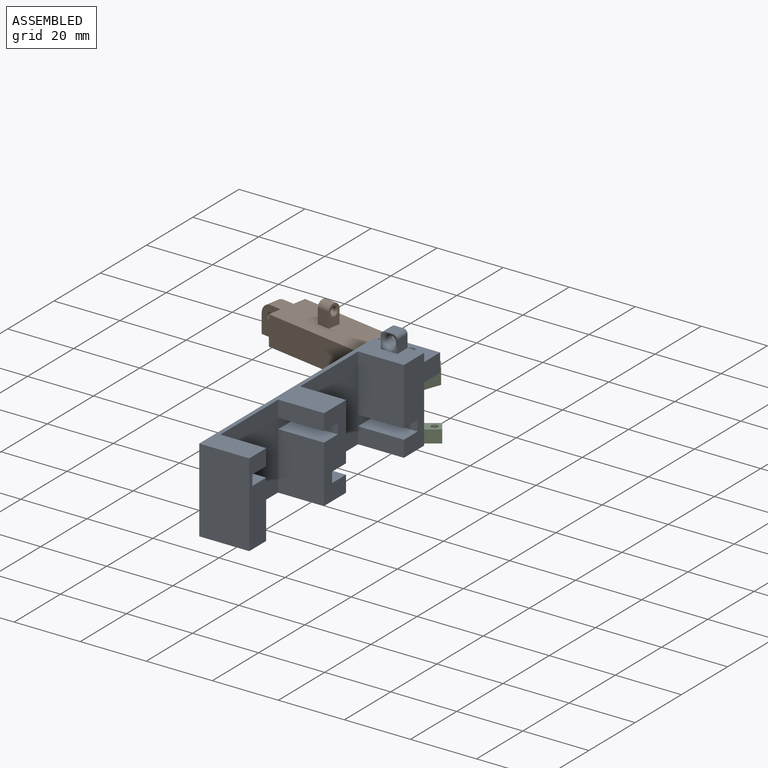
[diagram: assembled view]
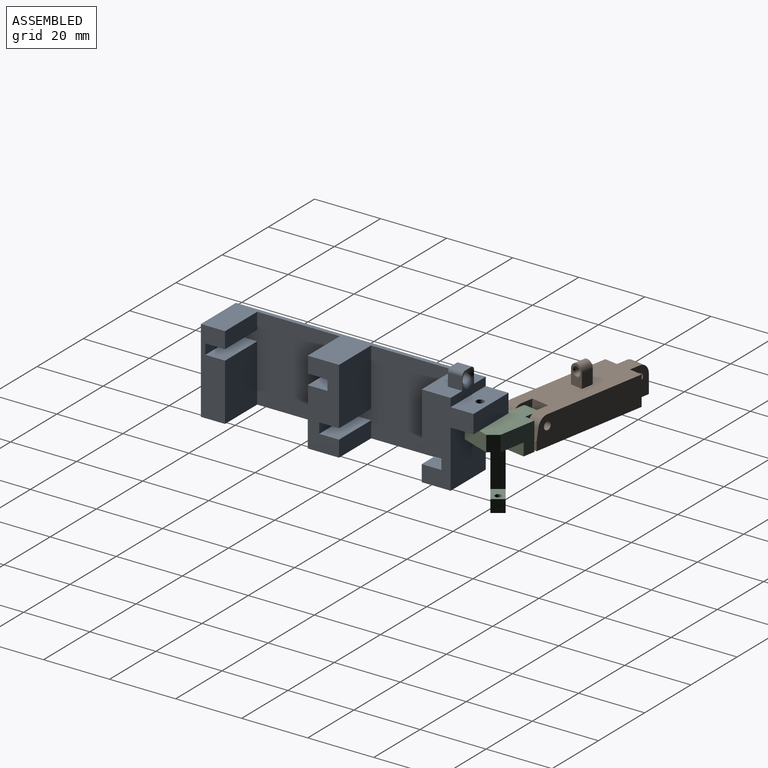
[diagram: assembled view, second angle]
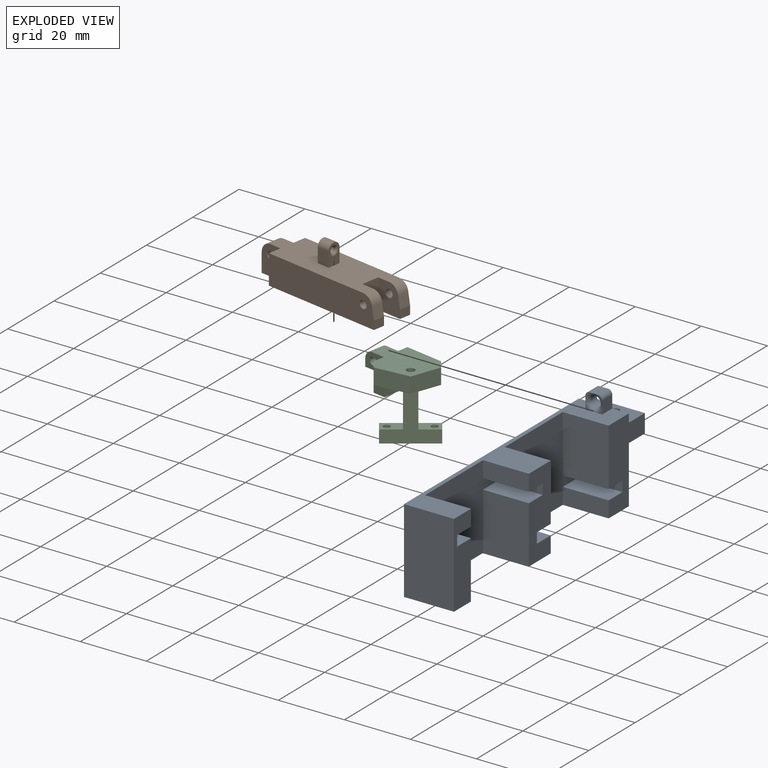
[diagram: exploded view]
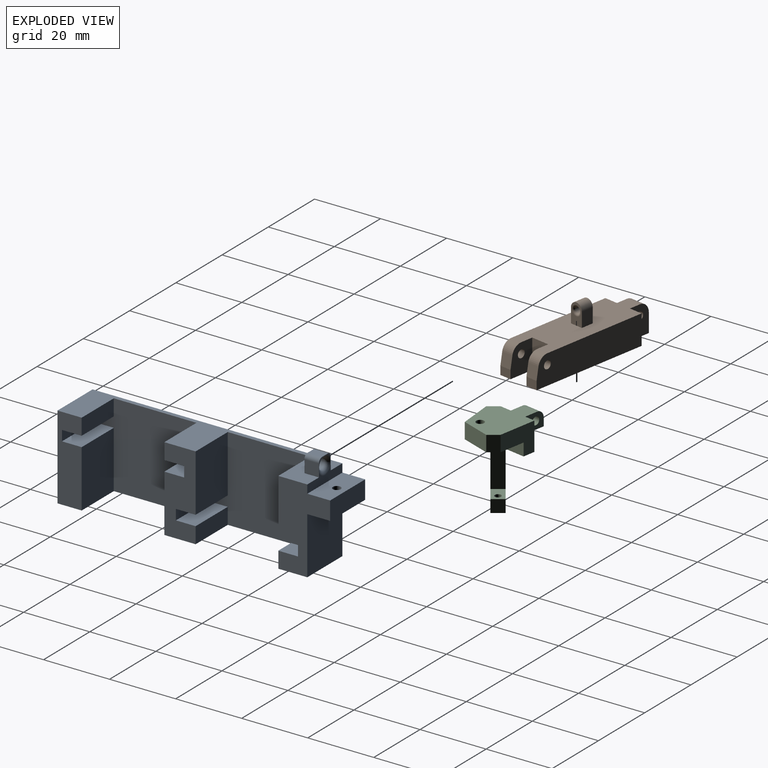
[diagram: exploded view, second angle]
ASSEMBLY  parts=3 mates=2
PART A: 50 faces, bbox 15.2x82.6x32 mm
  f0: plane 1.23x1.23mm, normal (0,-1,0), area 0.6mm2, adj f5,f40,f46
  f1: plane 1.23x1.23mm, normal (0,-1,0), area 0.6mm2, adj f5,f42,f46
  f2: plane 1.23x1.23mm, normal (0,-1,0), area 0.3mm2, adj f46,f48
  f3: plane 15.16x3.77mm, normal (0,1,0), area 39.1mm2, adj f5,f6,f10,f27,f40,f42,f49
  f4: plane 1.23x1.23mm, normal (0,1,0), area 0.3mm2, adj f48,f49
  f5: plane 75.68x15.2mm, normal (0,0,1), area 428.8mm2, adj f0,f1,f3,f6,f7,f10,f11,f12
  f6: plane 25.4x15.69mm, normal (1,0,0), area 242.9mm2, adj f3,f5,f8,f9,f20,f21,f22,f23
  f7: plane 25.4x7.32mm, normal (1,0,0), area 167.1mm2, adj f5,f8,f13,f14,f34,f35,f36,f37
  f8: plane 75.64x15.16mm, normal (0,0,-1), area 451.1mm2, adj f6,f7,f10,f11,f12,f13,f15,f24
  f9: plane 15.16x5.59mm, normal (0,1,0), area 84.7mm2, adj f6,f10,f26,f27
  f10: plane 82.55x25.4mm, normal (-1,0,0), area 1959.9mm2, adj f3,f5,f8,f9,f13,f25,f26,f27
  f11: plane 36.98x25.4mm, normal (1,0,0), area 673.4mm2, adj f5,f8,f14,f29,f30,f31,f32,f33
  f12: plane 36.98x25.4mm, normal (1,0,0), area 673.4mm2, adj f5,f8,f15,f16,f17,f18,f19,f20
  f13: plane 25.4x15.16mm, normal (0,-1,0), area 385.1mm2, adj f5,f7,f8,f10
  f14: plane 13.89x4.94mm, normal (0,1,0), area 68.5mm2, adj f5,f7,f11,f37
  f15: plane 13.89x4.94mm, normal (0,1,0), area 68.5mm2, adj f8,f12,f16,f38
  f16: plane 13.89x5.97mm, normal (0,0,1), area 82.9mm2, adj f12,f15,f17,f38
  f17: plane 13.89x3.14mm, normal (0,1,0), area 43.5mm2, adj f12,f16,f18,f38
  f18: plane 13.89x5.97mm, normal (0,0,-1), area 82.9mm2, adj f12,f17,f19,f38
  f19: plane 17.33x13.89mm, normal (0,1,0), area 240.7mm2, adj f5,f12,f18,f38
  f20: plane 17.33x13.89mm, normal (0,-1,0), area 240.7mm2, adj f5,f6,f12,f21
  f21: plane 13.89x5.97mm, normal (0,0,-1), area 82.9mm2, adj f6,f12,f20,f22
  f22: plane 13.89x3.14mm, normal (0,-1,0), area 43.5mm2, adj f6,f12,f21,f23
  f23: plane 13.89x5.97mm, normal (0,0,1), area 82.9mm2, adj f6,f12,f22,f24
  f24: plane 13.89x4.94mm, normal (0,-1,0), area 68.5mm2, adj f6,f8,f12,f23
  f25: plane 17.27x15.16mm, normal (0,1,0), area 261.8mm2, adj f6,f8,f10,f26
  f26: plane 15.16x6.91mm, normal (0,0,-1), area 100.3mm2, adj f6,f9,f10,f25,f39
  f27: plane 15.16x6.91mm, normal (0,0,1), area 100.3mm2, adj f3,f6,f9,f10,f39
  f28: plane 1.23x1.23mm, normal (0,1,0), area 0.3mm2, adj f47,f49
  f29: plane 13.89x4.94mm, normal (0,-1,0), area 68.5mm2, adj f5,f11,f30,f38
  f30: plane 13.89x5.97mm, normal (0,0,-1), area 82.9mm2, adj f11,f29,f31,f38
  f31: plane 13.89x3.14mm, normal (0,-1,0), area 43.5mm2, adj f11,f30,f32,f38
  f32: plane 13.89x5.97mm, normal (0,0,1), area 82.9mm2, adj f11,f31,f33,f38
  f33: plane 17.33x13.89mm, normal (0,-1,0), area 240.7mm2, adj f8,f11,f32,f38
  f34: plane 17.33x13.89mm, normal (0,1,0), area 240.7mm2, adj f7,f8,f11,f35
  f35: plane 13.89x5.97mm, normal (0,0,1), area 82.9mm2, adj f7,f11,f34,f36
  f36: plane 13.89x3.14mm, normal (0,1,0), area 43.5mm2, adj f7,f11,f35,f37
  f37: plane 13.89x5.97mm, normal (0,0,-1), area 82.9mm2, adj f7,f11,f14,f36
  f38: plane 25.4x9.47mm, normal (1,0,0), area 203mm2, adj f5,f8,f15,f16,f17,f18,f19,f29
  f39: cylinder r=1.19mm len=5.59mm, axis (0,0,-1), area 41.9mm2, adj f26,f27
  f40: plane 4.39x3.81mm, normal (-1,0,0), area 16.6mm2, adj f0,f3,f5,f46,f48,f49
  f41: plane 1.23x1.23mm, normal (0,-1,0), area 0.3mm2, adj f46,f47
  f42: plane 4.39x3.81mm, normal (1,0,0), area 16.6mm2, adj f1,f3,f5,f46,f47,f49
  f43: plane 4.39x2.54mm, normal (0,0,1), area 11mm2, adj f46,f47,f48,f49
  f44: cylinder r=1.59mm len=3.18mm, axis (0,-1,0), area 18.5mm2, adj f45,f46,f49
  f45: bspline ~3.07x1.42mm, area 3.3mm2, adj f5,f44,f46
  f46: torus R=2.86mm, axis (0,-1,0), area 20.1mm2, adj f0,f1,f2,f40,f41,f42,f43,f44
  f47: cylinder r=1.27mm len=4.39mm, axis (0,-1,0), area 8.8mm2, adj f28,f41,f42,f43,f46,f49
  f48: cylinder r=1.27mm len=4.39mm, axis (0,1,0), area 8.8mm2, adj f2,f4,f40,f43,f46,f49
  f49: torus R=2.86mm, axis (0,-1,0), area 24mm2, adj f3,f4,f28,f40,f42,f43,f44,f47
PART B: 32 faces, bbox 12.7x43.4x15.2 mm
  f0: plane 43.43x5.08mm, normal (0,0,1), area 182.2mm2, adj f3,f5,f12,f14,f16,f23,f28,f31
  f1: plane 36.48x12.7mm, normal (0,0,-1), area 399.4mm2, adj f2,f3,f4,f5,f7,f10,f12,f13
  f2: plane 8.89x6.6mm, normal (1,0,0), area 52.1mm2, adj f1,f15,f21,f22,f23,f30
  f3: plane 8.89x6.6mm, normal (-1,0,0), area 52.1mm2, adj f0,f1,f16,f21,f22,f23
  f4: plane 36.83x8.89mm, normal (1,0,0), area 318mm2, adj f1,f9,f10,f11,f15,f29,f30
  f5: plane 36.83x8.89mm, normal (-1,0,0), area 318mm2, adj f0,f1,f6,f7,f8,f16,f28
  f6: plane 3.73x3.56mm, normal (0,-0.98,-0.17), area 13.5mm2, adj f5,f7,f12,f28
  f7: cylinder r=3.17mm len=3.56mm, axis (-1,0,0), area 15.8mm2, adj f1,f5,f6,f12
  f8: cylinder r=1.19mm len=3.56mm, axis (-1,0,0), area 26.7mm2, adj f5,f12
  f9: plane 3.73x3.56mm, normal (0,-0.98,-0.17), area 13.5mm2, adj f4,f10,f13,f29
  f10: cylinder r=3.17mm len=3.56mm, axis (-1,0,0), area 15.8mm2, adj f1,f4,f9,f13
  f11: cylinder r=1.19mm len=3.56mm, axis (-1,0,0), area 26.7mm2, adj f4,f13
  f12: plane 8.89x7.62mm, normal (1,0,0), area 58.3mm2, adj f0,f1,f6,f7,f8,f14,f28
  f13: plane 8.89x7.62mm, normal (-1,0,0), area 58.3mm2, adj f1,f9,f10,f11,f14,f29,f30
  f14: plane 8.89x5.59mm, normal (0,-1,0), area 47.1mm2, adj f0,f1,f12,f13,f30,f31
  f15: plane 8.89x4.06mm, normal (0,1,0), area 36.1mm2, adj f1,f2,f4,f30
  f16: plane 8.89x4.06mm, normal (0,1,0), area 36.1mm2, adj f0,f1,f3,f5
  f17: plane 4.45x3.81mm, normal (1,0,0), area 16.9mm2, adj f1,f18,f20,f25
  f18: plane 6.35x3.81mm, normal (0,-1,0), area 14.7mm2, adj f1,f17,f19,f25,f26
  f19: plane 4.45x3.81mm, normal (-1,0,0), area 16.9mm2, adj f1,f18,f20,f25
  f20: plane 6.35x3.81mm, normal (0,1,0), area 14.7mm2, adj f1,f17,f19,f25,f27
  f21: cylinder r=1.19mm len=4.57mm, axis (1,0,0), area 34.3mm2, adj f2,f3
  f22: cylinder r=3.17mm len=4.57mm, axis (1,0,0), area 22.8mm2, adj f1,f2,f3,f23
  f23: plane 5.72x4.57mm, normal (0,1,0), area 23.6mm2, adj f0,f2,f3,f22,f30,f31
  f24: cylinder r=0.95mm len=2.54mm, axis (0,1,0), area 15.2mm2, adj f26,f27
  f25: cylinder r=1.91mm len=3.81mm, axis (0,1,0), area 22.8mm2, adj f17,f18,f19,f20
  f26: torus R=1.59mm, axis (0,1,0), area 7.4mm2, adj f18,f24
  f27: torus R=1.59mm, axis (0,1,0), area 7.4mm2, adj f20,f24
  f28: plane 3.56x2.54mm, normal (0,-1,0), area 9mm2, adj f0,f5,f6,f12
  f29: plane 3.56x2.54mm, normal (0,-1,0), area 9mm2, adj f4,f9,f13,f30
  f30: plane 43.43x5.08mm, normal (0,0,1), area 182.2mm2, adj f2,f4,f13,f14,f15,f23,f29,f31
  f31: cylinder r=1.27mm len=35.81mm, axis (0,1,0), area 142.9mm2, adj f0,f14,f23,f30
PART C: 29 faces, bbox 19.1x19.6x21.3 mm
  f0: plane 16.76x14.58mm, normal (0,0,-1), area 110.7mm2, adj f1,f2,f3,f4,f5,f14,f15,f16
  f1: plane 4.76x3.59mm, normal (-1,0,0), area 17.1mm2, adj f0,f2,f9,f10
  f2: plane 9.19x5.3mm, normal (-0.5,-0.87,0), area 50.5mm2, adj f0,f1,f3,f10
  f3: plane 7.58x5.3mm, normal (0.57,-0.82,0), area 44mm2, adj f0,f2,f4,f10
  f4: plane 4.76x3.59mm, normal (1,0,0), area 17.1mm2, adj f0,f3,f5,f10
  f5: plane 8.57x8.38mm, normal (0.71,0.71,0), area 71mm2, adj f0,f4,f9,f10,f16,f17
  f6: plane 4.76x4.58mm, normal (0.71,0.71,0), area 25.2mm2, adj f7,f9,f10,f11,f12,f13
  f7: plane 3.59x3.59mm, normal (-0.71,0.71,0), area 12.1mm2, adj f6,f8,f11,f13
  f8: plane 4.76x4.58mm, normal (-0.71,-0.71,0), area 25.2mm2, adj f7,f9,f10,f11,f12,f13
  f9: plane 8.57x8.38mm, normal (-0.71,0.71,0), area 77.4mm2, adj f1,f5,f6,f8,f10,f11,f15,f17
  f10: plane 17.9x17.14mm, normal (0,0,1), area 191.2mm2, adj f1,f2,f3,f4,f5,f6,f8,f9
  f11: plane 8.17x8.17mm, normal (0,0,-1), area 32.9mm2, adj f6,f7,f8,f9
  f12: cylinder r=1.19mm len=5.28mm, axis (-0.71,-0.71,0), area 38.1mm2, adj f6,f8
  f13: cylinder r=2.38mm len=5.28mm, axis (0.71,0.71,0), area 19mm2, adj f6,f7,f8,f10
  f14: cylinder r=1.19mm len=4.76mm, axis (0,0,1), area 35.7mm2, adj f0,f10
  f15: plane 3.81x2.69mm, normal (-0.71,-0.71,0), area 14.5mm2, adj f0,f9,f16,f17
  f16: plane 8.38x8.38mm, normal (0.71,-0.71,0), area 45.2mm2, adj f0,f5,f15,f17
  f17: plane 11.08x11.08mm, normal (0,0,-1), area 45.2mm2, adj f5,f9,f15,f16
  f18: plane 12.7x3.81mm, normal (1,0,0), area 48.4mm2, adj f0,f19,f21,f28
  f19: plane 16.51x15.67mm, normal (0,-1,0), area 108.1mm2, adj f0,f18,f20,f22,f23,f24,f27,f28
  f20: plane 12.7x3.81mm, normal (-1,0,0), area 48.4mm2, adj f0,f19,f21,f22
  f21: plane 16.51x15.67mm, normal (0,1,0), area 108.1mm2, adj f0,f18,f20,f22,f23,f24,f27,f28
  f22: plane 5.93x3.81mm, normal (0,0,1), area 19.7mm2, adj f19,f20,f21,f24,f25
  f23: plane 3.81x3.81mm, normal (1,0,0), area 14.5mm2, adj f19,f21,f27,f28
  f24: plane 3.81x3.81mm, normal (-1,0,0), area 14.5mm2, adj f19,f21,f22,f27
  f25: cylinder r=0.95mm len=3.81mm, axis (0,0,1), area 22.8mm2, adj f22,f27
  f26: cylinder r=0.95mm len=3.81mm, axis (0,0,1), area 22.8mm2, adj f27,f28
  f27: plane 15.67x3.81mm, normal (0,0,-1), area 54mm2, adj f19,f21,f23,f24,f25,f26
  f28: plane 5.93x3.81mm, normal (0,0,1), area 19.7mm2, adj f18,f19,f21,f23,f26
PLACE A t=(15.87,-62.65,-11.09)mm fixed
PLACE B rot(axis=(-0.64,0.77,0),180deg) t=(15.95,28.44,0.63)mm
PLACE C rot(axis=(0,0,1),35deg) t=(26.27,13.93,1.42)mm
MATE revolute C.f12 <-> B.f7  axis (-0.17,-0.98,0) through (10.64,20.09,3.8)mm
MATE revolute C.f14 <-> A.f39  axis (0,0,1) through (24.08,17.05,6.19)mm
